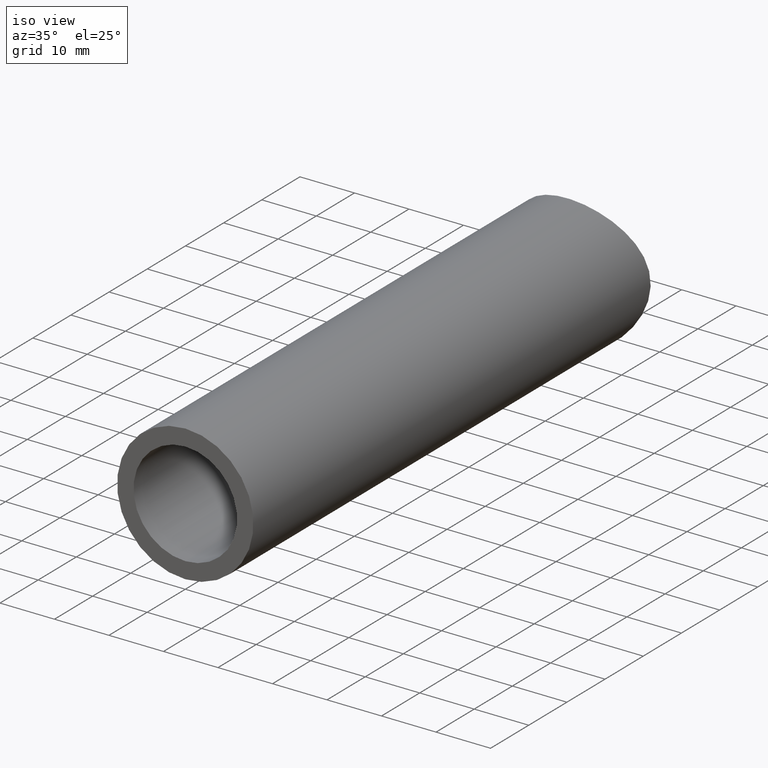
[diagram: clean part render]
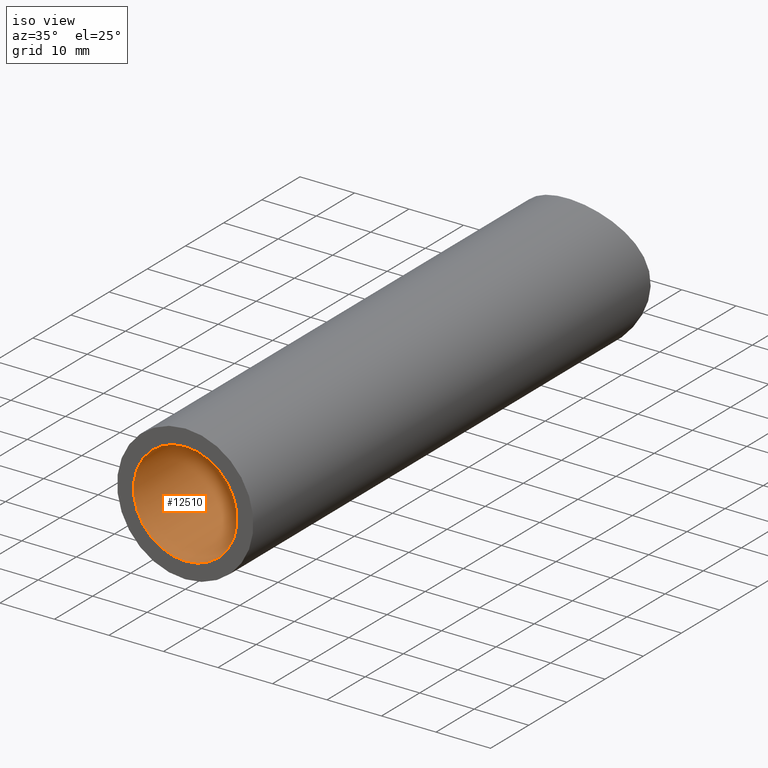
[diagram: same view with one face highlighted and labeled with its STEP entity id]
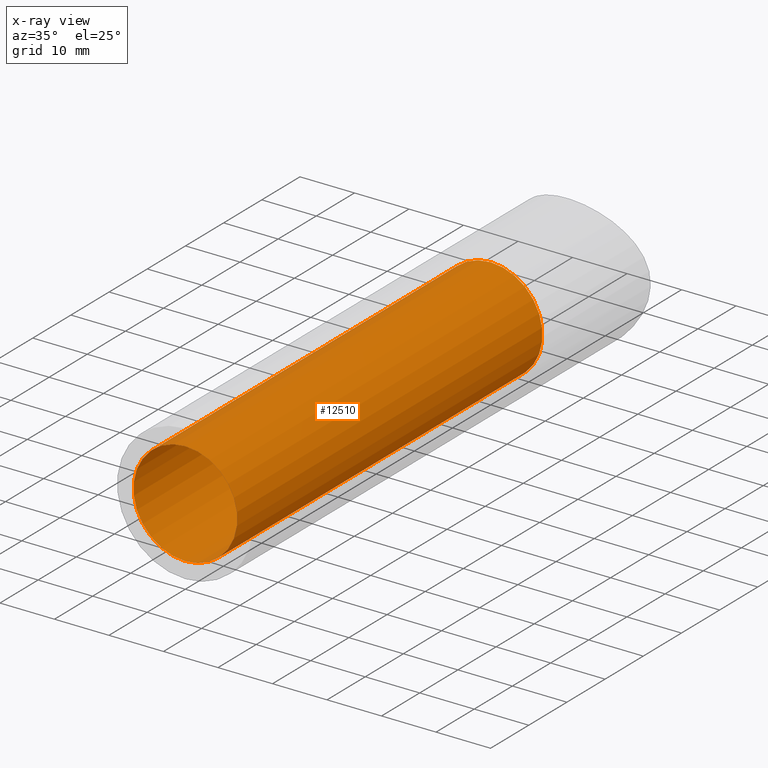
[diagram: x-ray of the same camera — body ghosted, the highlighted face saturated]
A machine part, iso view. The second image highlights one B-rep face of the part: STEP entity #12510.
The next image is the same camera in x-ray: the body ghosted, the highlighted face saturated — about 0% of this face is hidden behind the body in this view.
In plain terms, the highlighted cylindrical surface (bore or boss wall) has radius 9.5 mm, axis along (-0, -1, -0).
Its self-contained STEP definition (entity closure, byte-faithful):
#15 = ORIENTED_EDGE ( 'NONE', *, *, #7850, .F. ) ;
#1252 = CARTESIAN_POINT ( 'NONE',  ( 0.000000000000000000, 80.00000000000000000, -9.500000000000000000 ) ) ;
#1705 = DIRECTION ( 'NONE',  ( -0.000000000000000000, -1.000000000000000000, -0.000000000000000000 ) ) ;
#2904 = AXIS2_PLACEMENT_3D ( 'NONE', #3303, #11728, #9364 ) ;
#3025 = DIRECTION ( 'NONE',  ( 0.000000000000000000, 0.000000000000000000, 1.000000000000000000 ) ) ;
#3303 = CARTESIAN_POINT ( 'NONE',  ( 0.000000000000000000, 80.00000000000000000, 0.000000000000000000 ) ) ;
#4083 = CIRCLE ( 'NONE', #2904, 9.500000000000000000 ) ;
#4646 = EDGE_LOOP ( 'NONE', ( #15 ) ) ;
#5422 = VERTEX_POINT ( 'NONE', #1252 ) ;
#6331 = EDGE_LOOP ( 'NONE', ( #9720 ) ) ;
#6343 = CARTESIAN_POINT ( 'NONE',  ( 0.000000000000000000, 121.2000000000000028, 0.000000000000000000 ) ) ;
#7288 = CARTESIAN_POINT ( 'NONE',  ( 0.000000000000000000, 0.000000000000000000, 9.500000000000000000 ) ) ;
#7351 = AXIS2_PLACEMENT_3D ( 'NONE', #13589, #8803, #3025 ) ;
#7850 = EDGE_CURVE ( 'NONE', #5422, #5422, #4083, .T. ) ;
#7865 = CYLINDRICAL_SURFACE ( 'NONE', #14850, 9.500000000000000000 ) ;
#8485 = EDGE_CURVE ( 'NONE', #14975, #14975, #12009, .T. ) ;
#8803 = DIRECTION ( 'NONE',  ( 0.000000000000000000, 1.000000000000000000, 0.000000000000000000 ) ) ;
#9364 = DIRECTION ( 'NONE',  ( 0.000000000000000000, 0.000000000000000000, -1.000000000000000000 ) ) ;
#9720 = ORIENTED_EDGE ( 'NONE', *, *, #8485, .F. ) ;
#9930 = FACE_OUTER_BOUND ( 'NONE', #4646, .T. ) ;
#10282 = FACE_OUTER_BOUND ( 'NONE', #6331, .T. ) ;
#11728 = DIRECTION ( 'NONE',  ( 0.000000000000000000, -1.000000000000000000, 0.000000000000000000 ) ) ;
#12009 = CIRCLE ( 'NONE', #7351, 9.500000000000000000 ) ;
#12510 = ADVANCED_FACE ( 'NONE', ( #9930, #10282 ), #7865, .F. ) ;
#13566 = DIRECTION ( 'NONE',  ( 0.000000000000000000, 0.000000000000000000, -1.000000000000000000 ) ) ;
#13589 = CARTESIAN_POINT ( 'NONE',  ( 0.000000000000000000, 0.000000000000000000, 0.000000000000000000 ) ) ;
#14850 = AXIS2_PLACEMENT_3D ( 'NONE', #6343, #1705, #13566 ) ;
#14975 = VERTEX_POINT ( 'NONE', #7288 ) ;